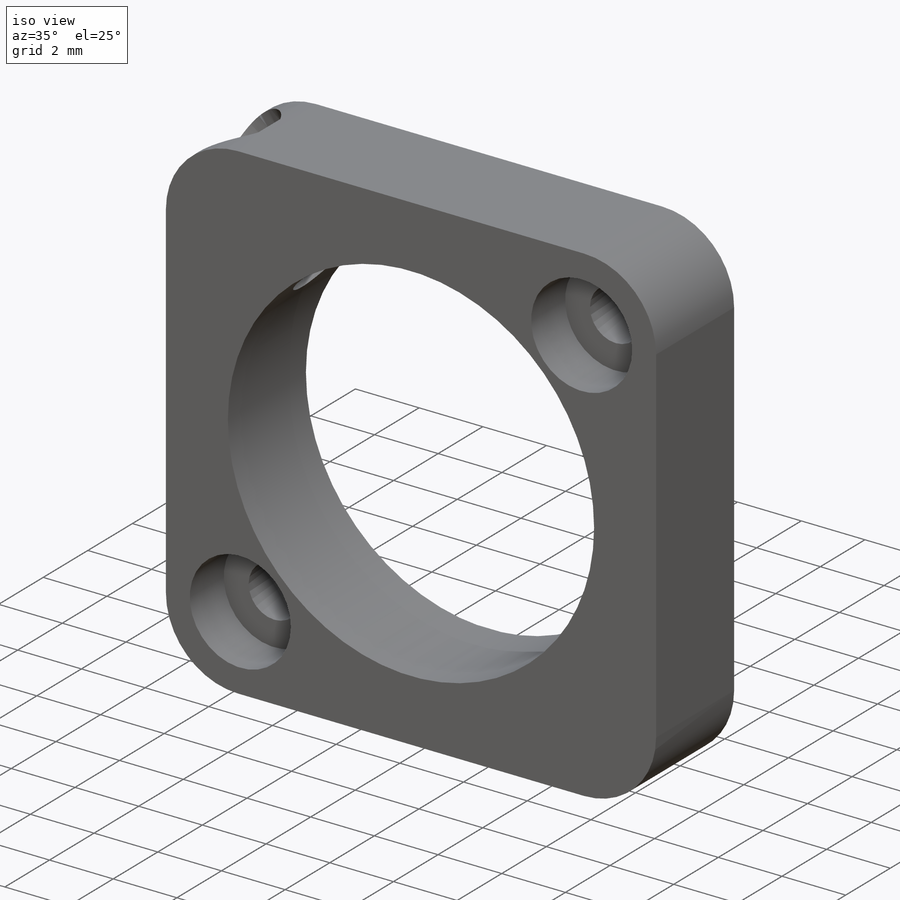
[diagram: iso view]
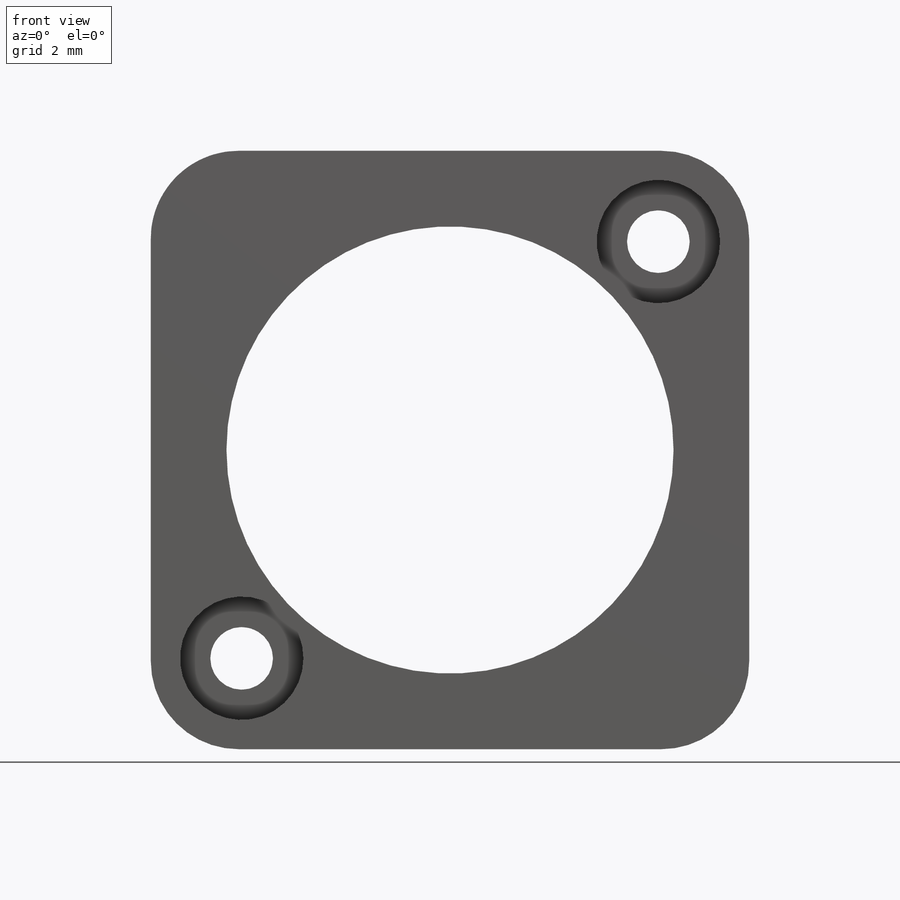
[diagram: front view]
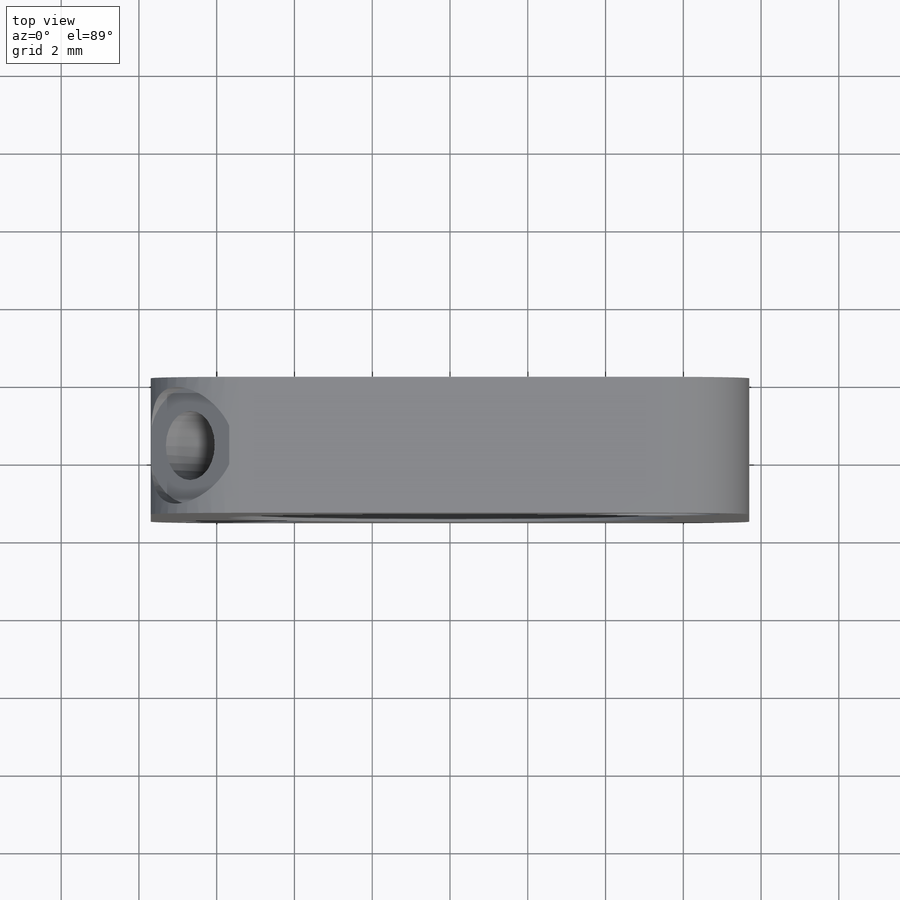
[diagram: top view]
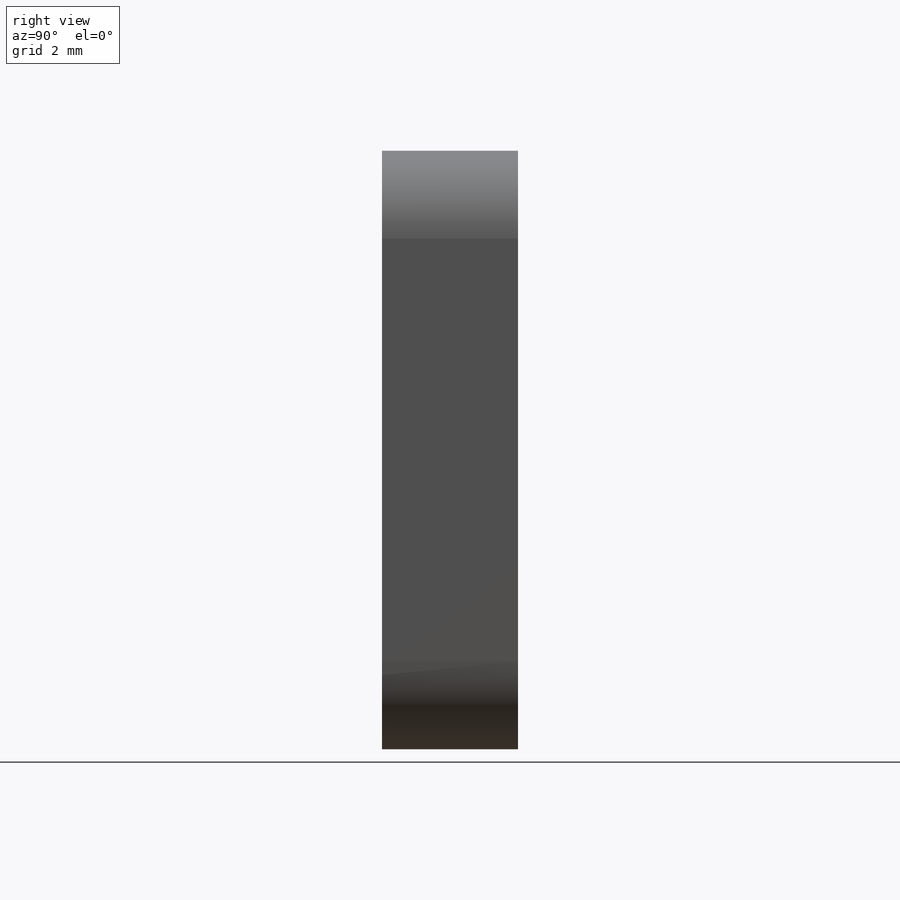
[diagram: right view]
SOLIDWORKS PART (.sldprt)
format: sldprt  version: not decoded by parser v0  size: 326,144 bytes
history: native  units: mm
features: sketch x10, hole x2, cut_extrude x2, plane x2, material x1, revolve x1, fillet x1, thread x1 (+11 scaffold rows collapsed)
feature tree (31):
  scaffold x11  (default folders/planes/origin — collapsed)
  material  "6061-T6 (SS)"
  sketch  "Sketch1"  dims[D1=30.0mm D2=11.5mm D3=3.5mm D4=1.0mm D5=1.0mm]
  revolve  "Revolve1"  Angle=360deg
  sketch  "Sketch2"  dims[c1.D1=~15.158672mm c1.D2=~15.158672mm c2.D2=45.0deg]
  hole  "CBORE for #0 Socket Head Cap Screw1"  Diameter=1.6129mm Depth=3.5mm
  sketch  "Sketch4"
  sketch  "Sketch3"  dims[hole-wizard template sketch: 41 standard entries collapsed; hole parameters kept: c12.Thru Hole Dia.=1.6129mm c12.Thru Hole Depth=3.5mm c12.C'Bore Dia.=3.175mm c12.C'Bore Depth=1.524mm c12.Far C'Sink Dia.=2.8829mm c12.D6=~2.963249mm c12.Far C'Sink Angle=90.0deg]
  sketch  "Sketch5"  dims[D1=15.3924mm]
  cut_extrude  "Cut-Extrude1"  Depth=10mm
  fillet  "Fillet1"  Radius=2.2606mm
  sketch  "Sketch6"
  plane  "Plane1"
  sketch  "Sketch7"
  plane  "Plane2"
  sketch  "Sketch8"  dims[D1=3.0mm]
  cut_extrude  "Cut-Extrude2"  Depth=0.5mm
  hole  "#2-56 Tapped Hole1"  [1 undecoded]
  sketch  "Sketch10"
  thread  "Hole Thread1"  Diameter=2.1844mm  [1 undecoded]
  sketch  "Sketch9"  dims[hole-wizard template sketch: 60 standard entries collapsed; hole parameters kept: c18.Thru Tap Drill Depth=~3.697699mm]
decode coverage: 12 of 17 modeling features carry decoded parameters
note: ~ marks probable driven/reference dimensions
note: 2 parameter values undecoded
note: suppression state not decoded; provenance and decode notes live in map.json
